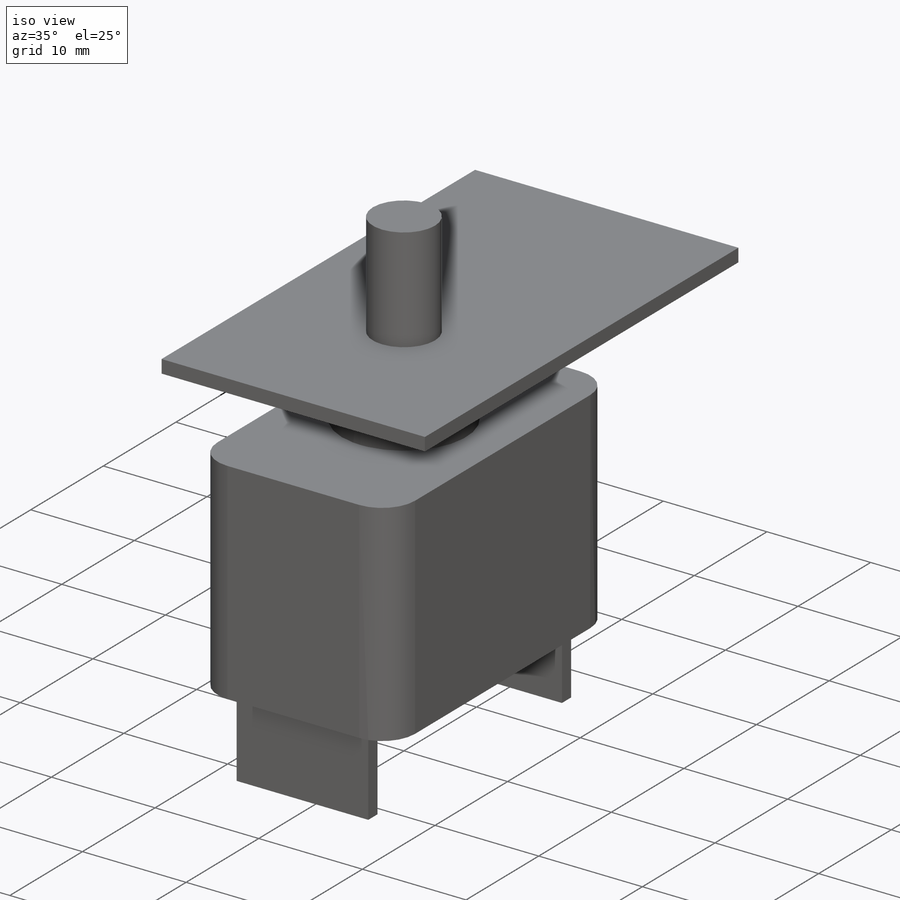
[diagram: iso view]
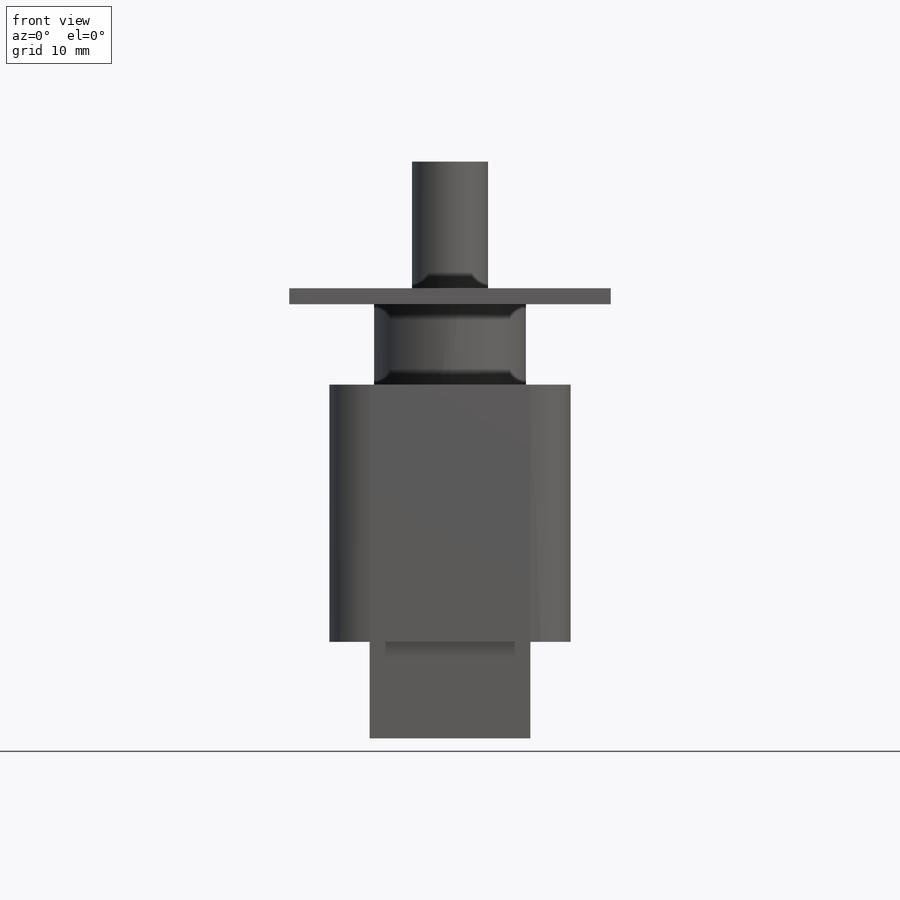
[diagram: front view]
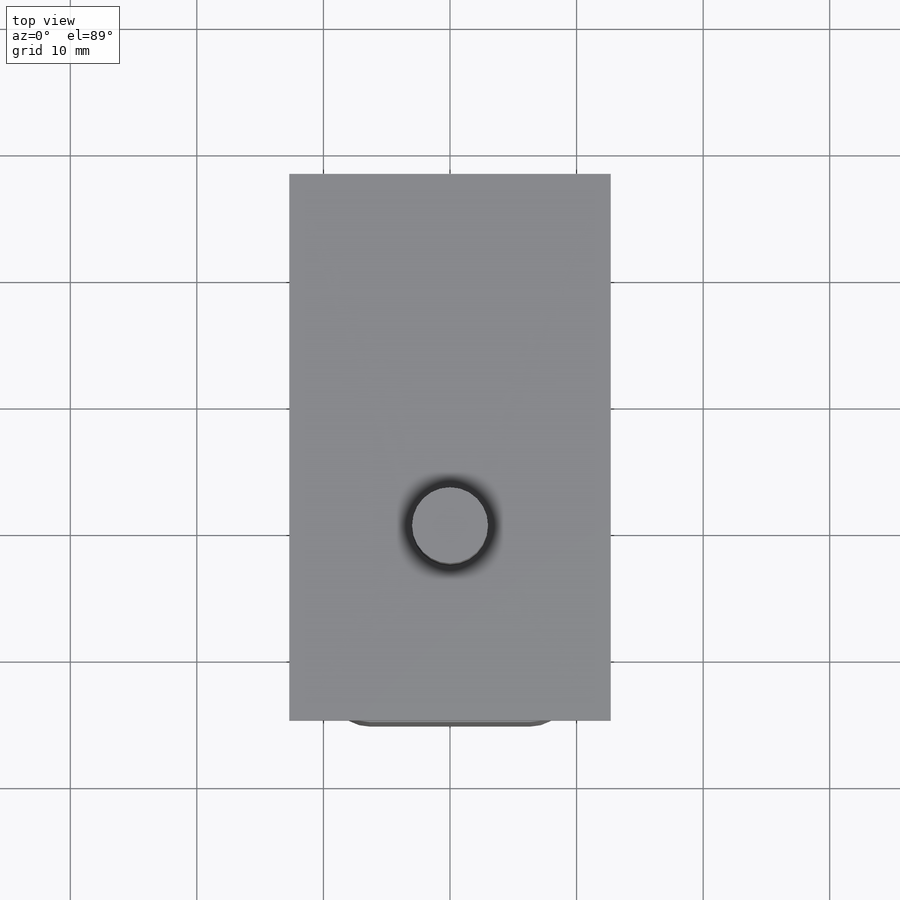
[diagram: top view]
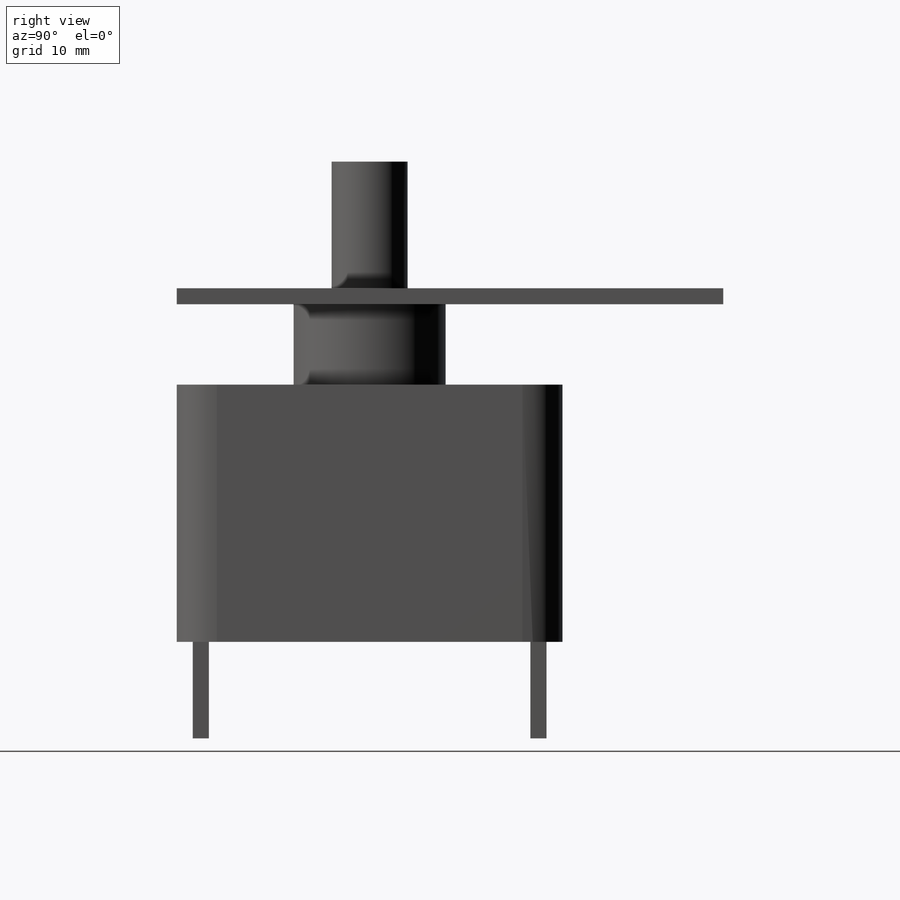
[diagram: right view]
SOLIDWORKS PART (.sldprt)
format: sldprt  version: not decoded by parser v0  size: 200,192 bytes
history: native  units: mm
features: sketch x5, extrude x5, material x1, fillet x1 (+11 scaffold rows collapsed)
feature tree (23):
  scaffold x11  (default folders/planes/origin — collapsed)
  material  "Material <not specified>"
  sketch  "Sketch1"  dims[D1=30.48mm D2=19.05mm]
  extrude  "Boss-Extrude1"  Depth=20.32mm
  fillet  "Fillet1"  Radius=3.175mm
  sketch  "Sketch2"  dims[D1=12.0mm]
  extrude  "Boss-Extrude2"  Depth=6.35mm
  sketch  "Sketch3"  dims[D1=12.7mm D2=1.27mm D3=1.27mm]
  extrude  "Boss-Extrude3"  Depth=7.62mm
  sketch  "Sketch4"  dims[D1=25.4mm D2=25.4mm D3=12.7mm]
  extrude  "Boss-Extrude4"  Depth=1.27mm
  sketch  "Sketch5"  dims[D1=6.0mm]
  extrude  "Boss-Extrude5"  Depth=10mm
decode coverage: 11 of 11 modeling features carry decoded parameters
note: suppression state not decoded; provenance and decode notes live in map.json
